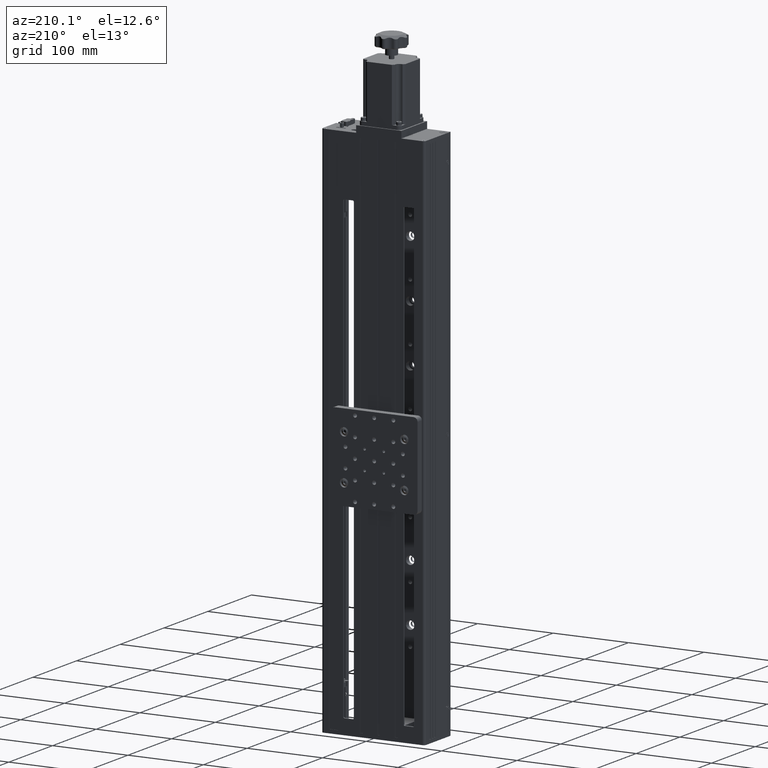
[diagram: clean part render]
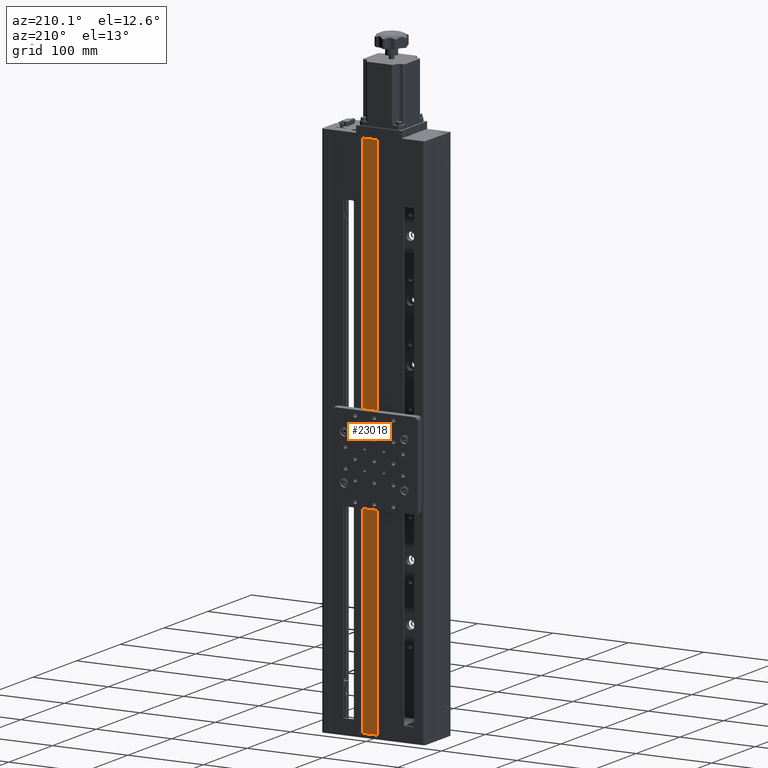
[diagram: same view with one face highlighted and labeled with its STEP entity id]
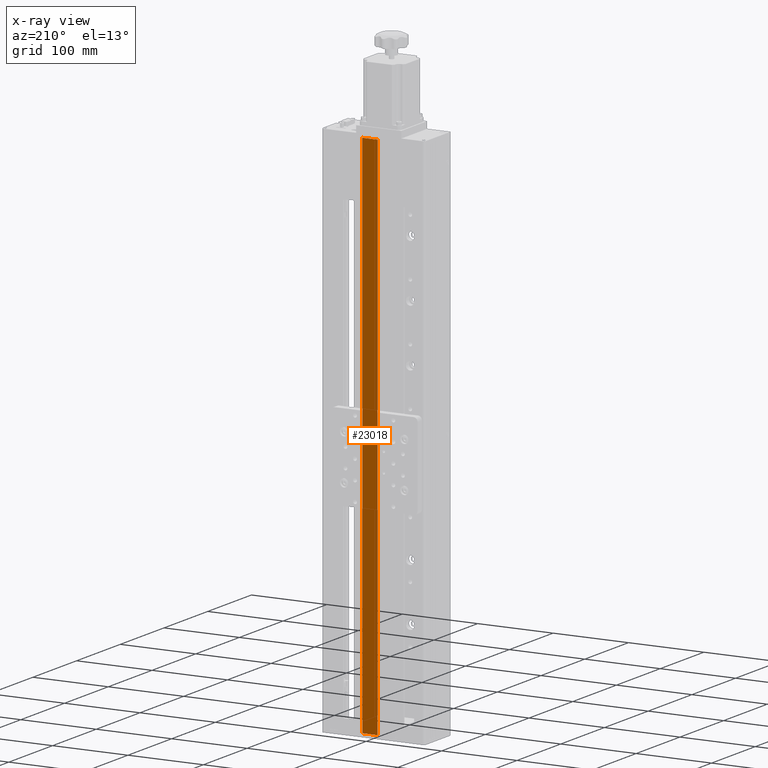
[diagram: x-ray of the same camera — body ghosted, the highlighted face saturated]
A machine part, auxiliary view. The second image highlights one B-rep face of the part: STEP entity #23018.
The next image is the same camera in x-ray: the body ghosted, the highlighted face saturated — about 0% of this face is hidden behind the body in this view.
In plain terms, the highlighted planar face has unit normal (0, 1, 0).
Its self-contained STEP definition (entity closure, byte-faithful):
#2274 = EDGE_LOOP ( 'NONE', ( #17037, #41237, #22786, #5232 ) ) ;
#2898 = EDGE_CURVE ( 'NONE', #16805, #20330, #37821, .T. ) ;
#3181 = CARTESIAN_POINT ( 'NONE',  ( -134.7356926832513000, 33.82987360368544900, -598.8342676332768000 ) ) ;
#5232 = ORIENTED_EDGE ( 'NONE', *, *, #38014, .T. ) ;
#5991 = VERTEX_POINT ( 'NONE', #3181 ) ;
#6090 = CARTESIAN_POINT ( 'NONE',  ( -134.7356926832513000, 33.82987360368544900, 101.1657323667232800 ) ) ;
#6531 = AXIS2_PLACEMENT_3D ( 'NONE', #6090, #28477, #9305 ) ;
#6990 = LINE ( 'NONE', #11545, #24022 ) ;
#9305 = DIRECTION ( 'NONE',  ( 0.0000000000000000000, -0.0000000000000000000, 1.000000000000000000 ) ) ;
#11095 = DIRECTION ( 'NONE',  ( -0.0000000000000000000, -0.0000000000000000000, -1.000000000000000000 ) ) ;
#11545 = CARTESIAN_POINT ( 'NONE',  ( -134.7356926832513000, 33.82987360368544900, -598.8342676332768000 ) ) ;
#16805 = VERTEX_POINT ( 'NONE', #36649 ) ;
#17037 = ORIENTED_EDGE ( 'NONE', *, *, #33477, .F. ) ;
#17659 = VECTOR ( 'NONE', #28233, 1000.000000000000000 ) ;
#20330 = VERTEX_POINT ( 'NONE', #21648 ) ;
#20365 = FACE_OUTER_BOUND ( 'NONE', #2274, .T. ) ;
#20597 = CARTESIAN_POINT ( 'NONE',  ( -134.7356926832513000, 33.82987360368544900, 101.1657323667232800 ) ) ;
#21366 = CARTESIAN_POINT ( 'NONE',  ( -134.7356926832513000, 33.82987360368544900, 101.1657323667232800 ) ) ;
#21648 = CARTESIAN_POINT ( 'NONE',  ( -114.7356926832513000, 33.82987360368544900, 101.1657323667232800 ) ) ;
#22786 = ORIENTED_EDGE ( 'NONE', *, *, #2898, .T. ) ;
#23018 = ADVANCED_FACE ( 'NONE', ( #20365 ), #25116, .T. ) ;
#24022 = VECTOR ( 'NONE', #33899, 1000.000000000000000 ) ;
#25031 = CARTESIAN_POINT ( 'NONE',  ( -114.7356926832513000, 33.82987360368544900, 101.1657323667232800 ) ) ;
#25116 = PLANE ( 'NONE',  #6531 ) ;
#25125 = LINE ( 'NONE', #25031, #17659 ) ;
#28233 = DIRECTION ( 'NONE',  ( -0.0000000000000000000, -0.0000000000000000000, -1.000000000000000000 ) ) ;
#28477 = DIRECTION ( 'NONE',  ( 0.0000000000000000000, 1.000000000000000000, 0.0000000000000000000 ) ) ;
#29330 = VECTOR ( 'NONE', #37120, 1000.000000000000000 ) ;
#30623 = CARTESIAN_POINT ( 'NONE',  ( -114.7356926832513000, 33.82987360368544900, -598.8342676332768000 ) ) ;
#33477 = EDGE_CURVE ( 'NONE', #5991, #39378, #6990, .T. ) ;
#33677 = VECTOR ( 'NONE', #11095, 1000.000000000000000 ) ;
#33899 = DIRECTION ( 'NONE',  ( 1.000000000000000000, 0.0000000000000000000, 0.0000000000000000000 ) ) ;
#34670 = LINE ( 'NONE', #20597, #33677 ) ;
#36649 = CARTESIAN_POINT ( 'NONE',  ( -134.7356926832513000, 33.82987360368544900, 101.1657323667232800 ) ) ;
#37120 = DIRECTION ( 'NONE',  ( 1.000000000000000000, 0.0000000000000000000, 0.0000000000000000000 ) ) ;
#37766 = EDGE_CURVE ( 'NONE', #16805, #5991, #34670, .T. ) ;
#37821 = LINE ( 'NONE', #21366, #29330 ) ;
#38014 = EDGE_CURVE ( 'NONE', #20330, #39378, #25125, .T. ) ;
#39378 = VERTEX_POINT ( 'NONE', #30623 ) ;
#41237 = ORIENTED_EDGE ( 'NONE', *, *, #37766, .F. ) ;